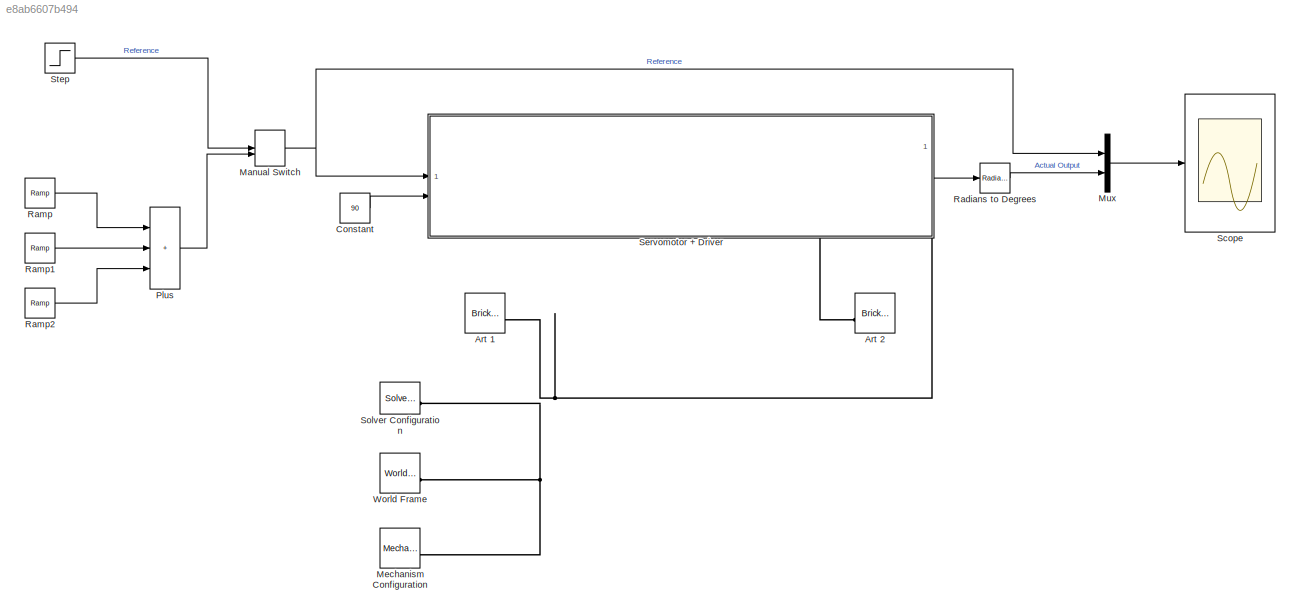
MODEL slx_e8ab6607b494
KIND model
CONFIG AbsTol = 1e-3
CONFIG EnableMultiTasking = off
CONFIG FixedStep = 0.001
CONFIG MaxStep = auto
CONFIG MinStep = auto
CONFIG RelTol = 1e-3
CONFIG SampleTimeConstraint = Unconstrained
CONFIG SolverName = VariableStepAuto
CONFIG StartTime = 0.0
CONFIG StopTime = 10
BLOCK [Reference] Art 1  REF=sm_lib/Body Elements/Brick Solid
  SourceBlock = sm_lib/Body Elements/Brick Solid
  SourceType = Brick Solid
BLOCK [Reference] Art 2  REF=sm_lib/Body Elements/Brick Solid
  SourceBlock = sm_lib/Body Elements/Brick Solid
  SourceType = Brick Solid
BLOCK [Constant] Constant
  Value = 90
BLOCK [ManualSwitch] Manual Switch
  CurrentSetting = 0
BLOCK [Reference] Mechanism Configuration  REF=sm_lib/Utilities/Mechanism
Configuration
  SourceBlock = sm_lib/Utilities/Mechanism\nConfiguration
  SourceType = Mechanism\nConfiguration
BLOCK [Mux] Mux
  DisplayOption = bar
  Inputs = 2
BLOCK [Sum] Plus
  IconShape = rectangular
  Inputs = +++
BLOCK [Reference] Radians to Degrees  REF=simulink_extras/Transformations/Radians
to Degrees
  SourceBlock = simulink_extras/Transformations/Radians\nto Degrees
  SourceType = RadiansToDegrees
BLOCK [Reference] Ramp  REF=simulink/Sources/Ramp
  SourceBlock = simulink/Sources/Ramp
  SourceType = Ramp
BLOCK [Reference] Ramp1  REF=simulink/Sources/Ramp
  SourceBlock = simulink/Sources/Ramp
  SourceType = Ramp
BLOCK [Reference] Ramp2  REF=simulink/Sources/Ramp
  SourceBlock = simulink/Sources/Ramp
  SourceType = Ramp
BLOCK [Scope] Scope
  Floating = off
  NumInputPorts = 1
  ScopeSpecificationString = Simulink.scopes.TimeScopeBlockCfg('CurrentConfiguration', extmgr.ConfigurationSet(extmgr.Configuration('Core','General UI',true,'FigureColor',[0.501960784313725 0.501960784313725 0.501960784313725]),extmgr.Configuration('Core','Source UI',true),extmgr.Configuration('Sources','WiredSimulink',true,'DataLoggingVariableName','ScopeData1'),extmgr.Configuration('Visuals','Time Domain',true,'SerializedDi...<+1941ch>
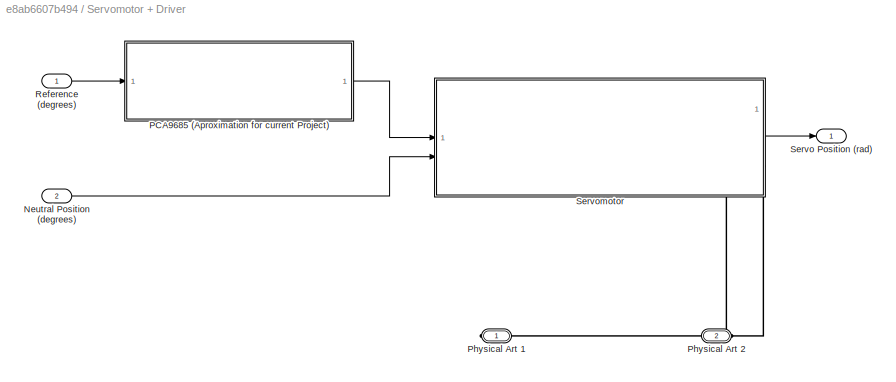
BLOCK [SubSystem] Servomotor + Driver
  PortSchema = {"entries":[{"content":{"sides":[{"content":{"connectorIds":["In1","In2"]},"type":"ConnectorPlacement.EquallySpacedRectSide","uuid":"34aed934-2639-4a00-aaee-cf3027466446"},{"content":{"connectorIds":["Out1"],"side":"RIGHT"},"type":"ConnectorPlacement.EquallySpacedRectSide","uuid":"6801890d-3466-4e37-90e8-6d1471e5b2c4"},{"content":{"side":"TOP"},"type":"ConnectorPlacement.EquallySpacedRectSide","uu...<+389ch>
BLOCK [Inport] Servomotor + Driver/Neutral Position (degrees)
  Port = 2
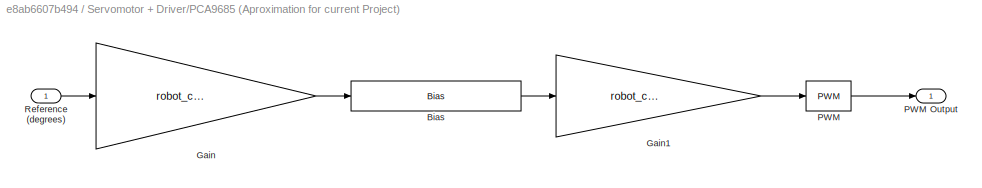
BLOCK [SubSystem] Servomotor + Driver/PCA9685 (Aproximation for current Project)
BLOCK [Bias] Servomotor + Driver/PCA9685 (Aproximation for current Project)/Bias
  Bias = robot_conversions.steps_offset
  SaturateOnIntegerOverflow = off
BLOCK [Gain] Servomotor + Driver/PCA9685 (Aproximation for current Project)/Gain
  Gain = robot_conversions.steps_to_degrees
BLOCK [Gain] Servomotor + Driver/PCA9685 (Aproximation for current Project)/Gain1
  Gain = robot_conversions.degress_to_DC
BLOCK [Reference] Servomotor + Driver/PCA9685 (Aproximation for current Project)/PWM  REF=simulink/Discontinuities/PWM
  DisableCoverage = on
  SourceBlock = simulink/Discontinuities/PWM
  SourceType = PWM
BLOCK [Outport] Servomotor + Driver/PCA9685 (Aproximation for current Project)/PWM Output
  NameLocation = right
BLOCK [Inport] Servomotor + Driver/PCA9685 (Aproximation for current Project)/Reference (degrees)
  NameLocation = left
BLOCK [PMIOPort] Servomotor + Driver/Physical Art 1
  Side = Right
BLOCK [PMIOPort] Servomotor + Driver/Physical Art 2
  Port = 2
  Side = Right
BLOCK [Inport] Servomotor + Driver/Reference (degrees)
BLOCK [Outport] Servomotor + Driver/Servo Position (rad)
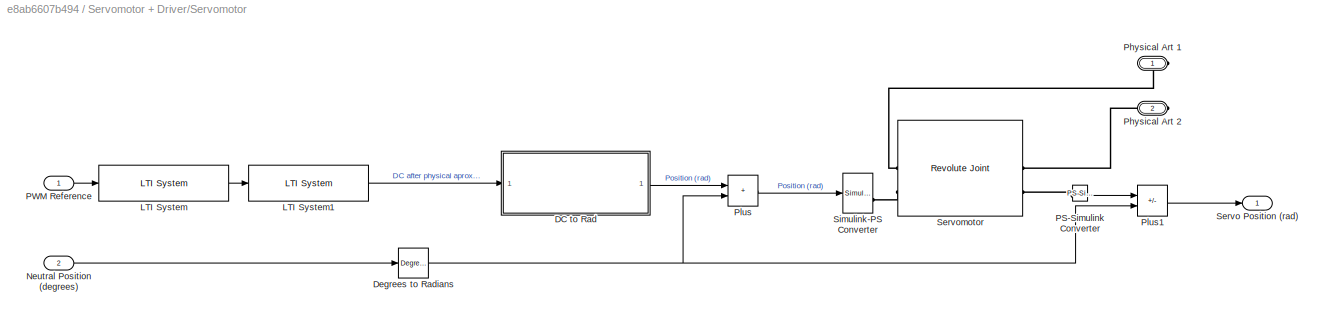
BLOCK [SubSystem] Servomotor + Driver/Servomotor
  PortSchema = {"entries":[{"content":{"sides":[{"content":{"connectorIds":["In1","In2"]},"type":"ConnectorPlacement.EquallySpacedRectSide","uuid":"eeff66d3-7cb0-4fe9-90b5-92935711e170"},{"content":{"connectorIds":["Out1"],"side":"RIGHT"},"type":"ConnectorPlacement.EquallySpacedRectSide","uuid":"4c1729b3-3224-4ed4-9eed-359312bd5e7e"},{"content":{"side":"TOP"},"type":"ConnectorPlacement.EquallySpacedRectSide","uu...<+389ch>
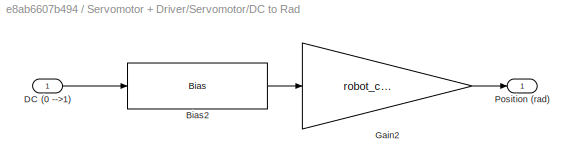
BLOCK [SubSystem] Servomotor + Driver/Servomotor/DC to Rad
BLOCK [Bias] Servomotor + Driver/Servomotor/DC to Rad/Bias2
  Bias = robot_conversions.DC_offset
  SaturateOnIntegerOverflow = off
BLOCK [Inport] Servomotor + Driver/Servomotor/DC to Rad/DC (0 -->1)
BLOCK [Gain] Servomotor + Driver/Servomotor/DC to Rad/Gain2
  Gain = robot_conversions.DC_to_rad
BLOCK [Outport] Servomotor + Driver/Servomotor/DC to Rad/Position (rad)
BLOCK [Reference] Servomotor + Driver/Servomotor/Degrees to Radians  REF=simulink_extras/Transformations/Degrees to
Radians
  SourceBlock = simulink_extras/Transformations/Degrees to\nRadians
  SourceType = DegreesToRadians
BLOCK [Reference] Servomotor + Driver/Servomotor/LTI System  REF=cstblocks/LTI System
  SourceBlock = cstblocks/LTI System
  SourceType = LTI Block
BLOCK [Reference] Servomotor + Driver/Servomotor/LTI System1  REF=cstblocks/LTI System
  SourceBlock = cstblocks/LTI System
  SourceType = LTI Block
BLOCK [Inport] Servomotor + Driver/Servomotor/Neutral Position (degrees)
  NameLocation = left
  Port = 2
BLOCK [Reference] Servomotor + Driver/Servomotor/PS-Simulink Converter  REF=nesl_utility/PS-Simulink
Converter
  SourceBlock = nesl_utility/PS-Simulink\nConverter
  SourceType = PS-Simulink\nConverter
BLOCK [Inport] Servomotor + Driver/Servomotor/PWM Reference
  NameLocation = left
BLOCK [PMIOPort] Servomotor + Driver/Servomotor/Physical Art 1
  Side = Right
BLOCK [PMIOPort] Servomotor + Driver/Servomotor/Physical Art 2
  Port = 2
  Side = Right
BLOCK [Sum] Servomotor + Driver/Servomotor/Plus
  IconShape = rectangular
BLOCK [Sum] Servomotor + Driver/Servomotor/Plus1
  IconShape = rectangular
  Inputs = +-
BLOCK [Outport] Servomotor + Driver/Servomotor/Servo Position (rad)
  NameLocation = right
BLOCK [Reference] Servomotor + Driver/Servomotor/Servomotor  REF=sm_lib/Joints/Revolute Joint
  SourceBlock = sm_lib/Joints/Revolute Joint
  SourceType = Revolute Joint
BLOCK [Reference] Servomotor + Driver/Servomotor/Simulink-PS Converter  REF=nesl_utility/Simulink-PS
Converter
  SourceBlock = nesl_utility/Simulink-PS\nConverter
  SourceType = Simulink-PS\nConverter
BLOCK [Reference] Solver Configuration  REF=nesl_utility/Solver
Configuration
  SourceBlock = nesl_utility/Solver\nConfiguration
  SourceType = Solver\nConfiguration
BLOCK [Step] Step
  After = 60
  SampleTime = 0
  Time = 4
BLOCK [Reference] World Frame  REF=sm_lib/Frames and
Transforms/World Frame
  SourceBlock = sm_lib/Frames and\nTransforms/World Frame
  SourceType = World Frame
LINE Constant:1 -> Servomotor + Driver:2
NET Manual Switch:1 -> Mux:1, Servomotor + Driver:1
LINE Mux:1 -> Scope:1
LINE Plus:1 -> Manual Switch:2
LINE Radians to Degrees:1 -> Mux:2
LINE Ramp1:1 -> Plus:2
LINE Ramp2:1 -> Plus:3
LINE Ramp:1 -> Plus:1
LINE Servomotor + Driver/Neutral Position (degrees):1 -> Servomotor + Driver/Servomotor:2
LINE Servomotor + Driver/PCA9685 (Aproximation for current Project)/Bias:1 -> Servomotor + Driver/PCA9685 (Aproximation for current Project)/Gain1:1
LINE Servomotor + Driver/PCA9685 (Aproximation for current Project)/Gain1:1 -> Servomotor + Driver/PCA9685 (Aproximation for current Project)/PWM:1
LINE Servomotor + Driver/PCA9685 (Aproximation for current Project)/Gain:1 -> Servomotor + Driver/PCA9685 (Aproximation for current Project)/Bias:1
LINE Servomotor + Driver/PCA9685 (Aproximation for current Project)/PWM:1 -> Servomotor + Driver/PCA9685 (Aproximation for current Project)/PWM Output:1
LINE Servomotor + Driver/PCA9685 (Aproximation for current Project)/Reference (degrees):1 -> Servomotor + Driver/PCA9685 (Aproximation for current Project)/Gain:1
LINE Servomotor + Driver/PCA9685 (Aproximation for current Project):1 -> Servomotor + Driver/Servomotor:1
LINE Servomotor + Driver/Reference (degrees):1 -> Servomotor + Driver/PCA9685 (Aproximation for current Project):1
LINE Servomotor + Driver/Servomotor/DC to Rad/Bias2:1 -> Servomotor + Driver/Servomotor/DC to Rad/Gain2:1
LINE Servomotor + Driver/Servomotor/DC to Rad/DC (0 -->1):1 -> Servomotor + Driver/Servomotor/DC to Rad/Bias2:1
LINE Servomotor + Driver/Servomotor/DC to Rad/Gain2:1 -> Servomotor + Driver/Servomotor/DC to Rad/Position (rad):1
LINE Servomotor + Driver/Servomotor/DC to Rad:1 -> Servomotor + Driver/Servomotor/Plus:1
NET Servomotor + Driver/Servomotor/Degrees to Radians:1 -> Servomotor + Driver/Servomotor/Plus1:2, Servomotor + Driver/Servomotor/Plus:2
LINE Servomotor + Driver/Servomotor/LTI System1:1 -> Servomotor + Driver/Servomotor/DC to Rad:1
LINE Servomotor + Driver/Servomotor/LTI System:1 -> Servomotor + Driver/Servomotor/LTI System1:1
LINE Servomotor + Driver/Servomotor/Neutral Position (degrees):1 -> Servomotor + Driver/Servomotor/Degrees to Radians:1
LINE Servomotor + Driver/Servomotor/PS-Simulink Converter:1 -> Servomotor + Driver/Servomotor/Plus1:1
LINE Servomotor + Driver/Servomotor/PWM Reference:1 -> Servomotor + Driver/Servomotor/LTI System:1
LINE Servomotor + Driver/Servomotor/Plus1:1 -> Servomotor + Driver/Servomotor/Servo Position (rad):1
LINE Servomotor + Driver/Servomotor/Plus:1 -> Servomotor + Driver/Servomotor/Simulink-PS Converter:1
LINE Servomotor + Driver/Servomotor:1 -> Servomotor + Driver/Servo Position (rad):1
LINE Servomotor + Driver:1 -> Radians to Degrees:1
LINE Step:1 -> Manual Switch:1
PNET net1: Art 1:LConn1 -- Mechanism Configuration:RConn1 -- Servomotor + Driver:RConn1 -- Solver Configuration:RConn1 -- World Frame:RConn1
PLINE Art 2:LConn1 -- Servomotor + Driver:RConn2
PLINE Servomotor + Driver/Physical Art 1:RConn1 -- Servomotor + Driver/Servomotor:RConn1
PLINE Servomotor + Driver/Physical Art 2:RConn1 -- Servomotor + Driver/Servomotor:RConn2
PLINE Servomotor + Driver/Servomotor/PS-Simulink Converter:LConn1 -- Servomotor + Driver/Servomotor/Servomotor:RConn2
PLINE Servomotor + Driver/Servomotor/Physical Art 1:RConn1 -- Servomotor + Driver/Servomotor/Servomotor:LConn1
PLINE Servomotor + Driver/Servomotor/Physical Art 2:RConn1 -- Servomotor + Driver/Servomotor/Servomotor:RConn1
PLINE Servomotor + Driver/Servomotor/Servomotor:LConn2 -- Servomotor + Driver/Servomotor/Simulink-PS Converter:RConn1
note: NET lines group one-source signal fan-out (src -> all destinations, sorted); 1:1 wires keep LINE; PNET lines group multi-terminal physical nets as a canonical sorted terminal list (undirected conserving connections); 2-terminal nets keep the pairwise PLINE form
